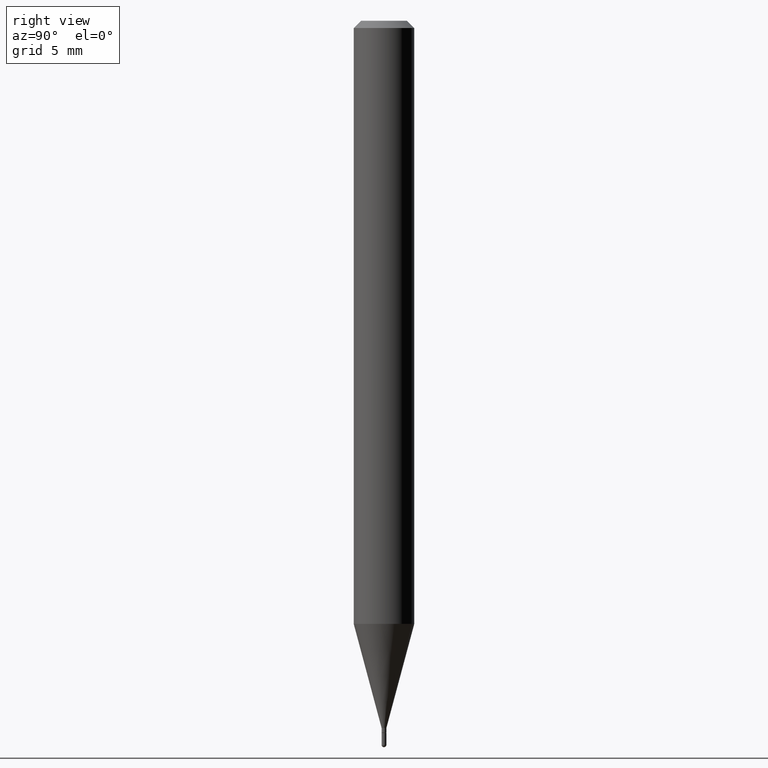
[diagram: clean part render]
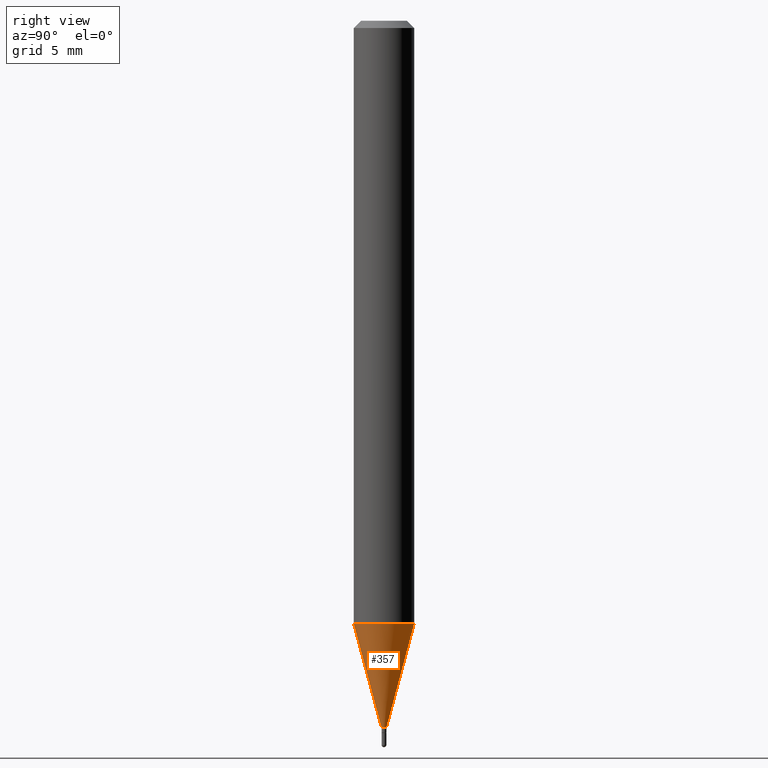
[diagram: same view with one face highlighted and labeled with its STEP entity id]
A machine part, right view. The second image highlights one B-rep face of the part: STEP entity #357.
In plain terms, the highlighted conical surface has half-angle 15 deg.
Its self-contained STEP definition (entity closure, byte-faithful):
#7 = AXIS2_PLACEMENT_3D ( 'NONE', #147, #29, #269 ) ;
#15 = VECTOR ( 'NONE', #212, 39.37007874015748143 ) ;
#23 = VERTEX_POINT ( 'NONE', #161 ) ;
#28 = EDGE_LOOP ( 'NONE', ( #302, #38, #127, #225 ) ) ;
#29 = DIRECTION ( 'NONE',  ( -2.445665953977767409E-29, 3.491199011983142468E-15, 1.000000000000000000 ) ) ;
#33 = CARTESIAN_POINT ( 'NONE',  ( 3.570672292807540384E-29, -5.097150557495387435E-15, -1.459999999999999742 ) ) ;
#38 = ORIENTED_EDGE ( 'NONE', *, *, #368, .T. ) ;
#44 = CIRCLE ( 'NONE', #404, 0.06250000000000000000 ) ;
#58 = CIRCLE ( 'NONE', #193, 0.004999999999999927246 ) ;
#65 = LINE ( 'NONE', #74, #372 ) ;
#69 = DIRECTION ( 'NONE',  ( -2.445665953977767409E-29, 3.491199011983142468E-15, 1.000000000000000000 ) ) ;
#74 = CARTESIAN_POINT ( 'NONE',  ( 3.552713678804019446E-17, 0.004999999999994829761, -1.459999999999999742 ) ) ;
#94 = CARTESIAN_POINT ( 'NONE',  ( 2.398081733190667635E-16, 0.004999999999994829761, -1.459999999999999742 ) ) ;
#102 = DIRECTION ( 'NONE',  ( 1.839019923739600710E-15, 0.2588190451025250138, 0.9659258262890670910 ) ) ;
#111 = EDGE_CURVE ( 'NONE', #23, #446, #369, .T. ) ;
#127 = ORIENTED_EDGE ( 'NONE', *, *, #172, .F. ) ;
#147 = CARTESIAN_POINT ( 'NONE',  ( 3.570672292807540384E-29, -5.097150557495387435E-15, -1.459999999999999742 ) ) ;
#153 = CONICAL_SURFACE ( 'NONE', #7, 0.004999999999999927246, 0.2617993877991502960 ) ;
#161 = CARTESIAN_POINT ( 'NONE',  ( -3.491481338839511498E-17, -0.005000000000005024731, -1.459999999999999742 ) ) ;
#172 = EDGE_CURVE ( 'NONE', #446, #416, #44, .T. ) ;
#179 = CARTESIAN_POINT ( 'NONE',  ( 3.045849690888821220E-29, -4.347963962202206812E-15, -1.245407078564789716 ) ) ;
#193 = AXIS2_PLACEMENT_3D ( 'NONE', #33, #69, #463 ) ;
#212 = DIRECTION ( 'NONE',  ( -1.807323732225330534E-15, -0.2588190451025182415, 0.9659258262890689783 ) ) ;
#225 = ORIENTED_EDGE ( 'NONE', *, *, #111, .F. ) ;
#257 = DIRECTION ( 'NONE',  ( -6.982962677686265922E-15, -1.000000000000000000, 4.370956789862821150E-15 ) ) ;
#259 = CARTESIAN_POINT ( 'NONE',  ( -4.364351673553611504E-16, -0.06250000000000434375, -1.245407078564789494 ) ) ;
#260 = VERTEX_POINT ( 'NONE', #94 ) ;
#264 = FACE_OUTER_BOUND ( 'NONE', #28, .T. ) ;
#269 = DIRECTION ( 'NONE',  ( -6.982962677686265922E-15, -1.000000000000000000, 0.000000000000000000 ) ) ;
#302 = ORIENTED_EDGE ( 'NONE', *, *, #426, .T. ) ;
#325 = CARTESIAN_POINT ( 'NONE',  ( -3.491481338839511498E-17, -0.005000000000005024731, -1.459999999999999742 ) ) ;
#357 = ADVANCED_FACE ( 'NONE', ( #264 ), #153, .T. ) ;
#368 = EDGE_CURVE ( 'NONE', #260, #416, #65, .T. ) ;
#369 = LINE ( 'NONE', #325, #15 ) ;
#372 = VECTOR ( 'NONE', #102, 39.37007874015748143 ) ;
#376 = DIRECTION ( 'NONE',  ( -2.445665953977767409E-29, 3.491199011983142468E-15, 1.000000000000000000 ) ) ;
#404 = AXIS2_PLACEMENT_3D ( 'NONE', #179, #376, #257 ) ;
#416 = VERTEX_POINT ( 'NONE', #504 ) ;
#426 = EDGE_CURVE ( 'NONE', #23, #260, #58, .T. ) ;
#446 = VERTEX_POINT ( 'NONE', #259 ) ;
#463 = DIRECTION ( 'NONE',  ( -6.982962677686265922E-15, -1.000000000000000000, 0.000000000000000000 ) ) ;
#504 = CARTESIAN_POINT ( 'NONE',  ( 4.440892098500927901E-16, 0.06249999999999563544, -1.245407078564790160 ) ) ;